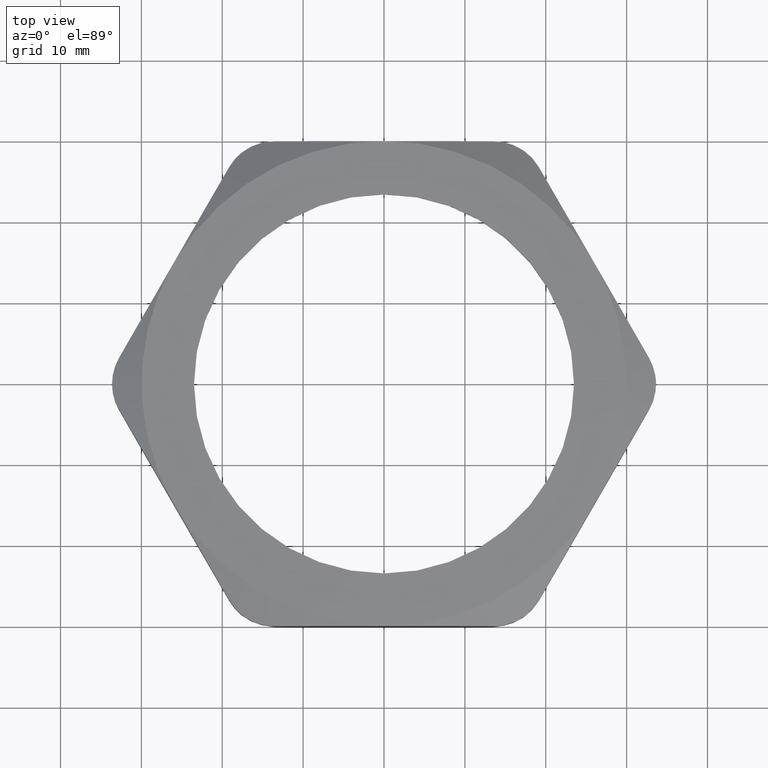
[diagram: clean part render]
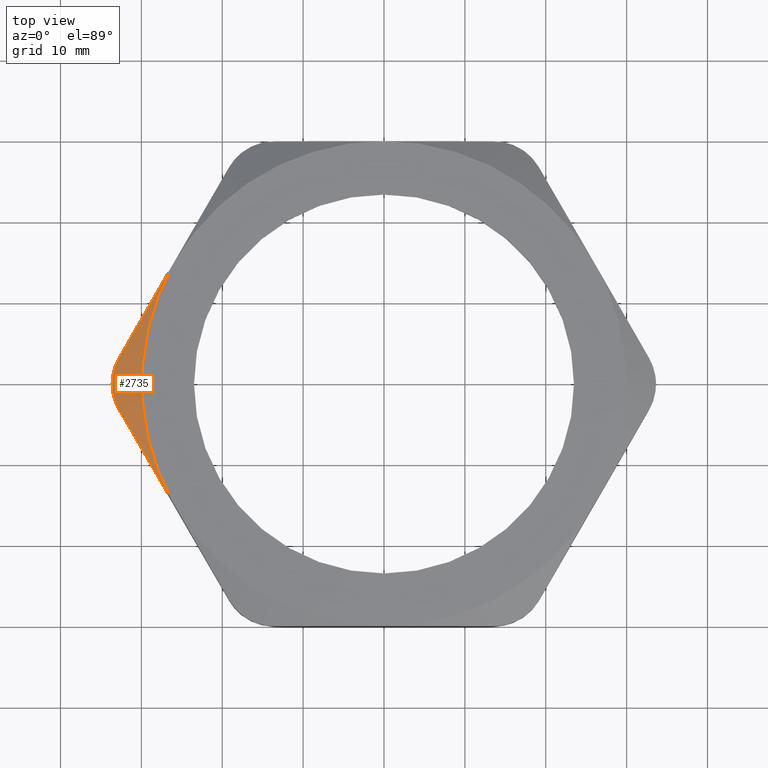
[diagram: same view with one face highlighted and labeled with its STEP entity id]
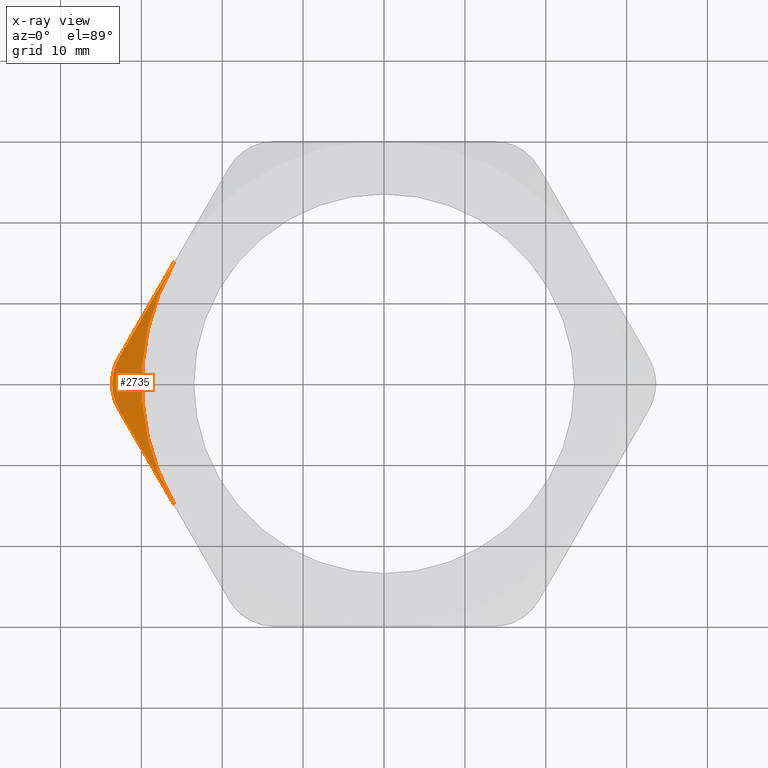
[diagram: x-ray of the same camera — body ghosted, the highlighted face saturated]
A machine part, top view. The second image highlights one B-rep face of the part: STEP entity #2735.
The next image is the same camera in x-ray: the body ghosted, the highlighted face saturated — about 0% of this face is hidden behind the body in this view.
In plain terms, the highlighted conical surface has half-angle 60 deg.
Its self-contained STEP definition (entity closure, byte-faithful):
#359 = CARTESIAN_POINT ( 'NONE',  ( -1.290377851638813400, -0.1249999999999998100, 0.2427859541343051200 ) ) ;
#360 = CARTESIAN_POINT ( 'NONE',  ( -1.301163024300265200, -0.1063195329819641400, 0.2376280449449064100 ) ) ;
#361 = CARTESIAN_POINT ( 'NONE',  ( -1.309608273902644700, -0.08602256121026791200, 0.2336403273867146400 ) ) ;
#362 = CARTESIAN_POINT ( 'NONE',  ( -1.318085377249127700, -0.05456655859989911800, 0.2296491859462564100 ) ) ;
#363 = CARTESIAN_POINT ( 'NONE',  ( -1.320238384401353900, -0.04387041525387930900, 0.2286388179600908100 ) ) ;
#364 = CARTESIAN_POINT ( 'NONE',  ( -1.323141469423208600, -0.02203945126250673700, 0.2272774143254683900 ) ) ;
#365 = CARTESIAN_POINT ( 'NONE',  ( -1.323871500692704400, -0.01095095147729014000, 0.2269357503463527200 ) ) ;
#366 = CARTESIAN_POINT ( 'NONE',  ( -1.323871500692703500, 2.219626507176767900E-016, 0.2269357503463527200 ) ) ;
#368 = CARTESIAN_POINT ( 'NONE',  ( -1.323871500692703500, 2.219626507176767900E-016, 0.2269357503463527200 ) ) ;
#369 = B_SPLINE_CURVE_WITH_KNOTS ( 'NONE', 3,
 ( #366, #365, #364, #363, #362, #361, #360, #359 ),
 .UNSPECIFIED., .F., .F.,
 ( 4, 2, 2, 4 ),
 ( 0.003343581398575306000, 0.004176957635011810700, 0.005010333871448315000, 0.006677086344321322800 ),
 .UNSPECIFIED. ) ;
#370 = CARTESIAN_POINT ( 'NONE',  ( -1.290377851638813400, -0.1249999999999998100, 0.2427859541343051200 ) ) ;
#488 = EDGE_CURVE ( 'NONE', #489, #490, #369, .T. ) ;
#489 = VERTEX_POINT ( 'NONE', #368 ) ;
#490 = VERTEX_POINT ( 'NONE', #370 ) ;
#1241 = CARTESIAN_POINT ( 'NONE',  ( -1.021909976465637900, -0.5899999999999995200, 0.3100000000000000000 ) ) ;
#1242 = CARTESIAN_POINT ( 'NONE',  ( -1.067459181867329400, -0.5111064619998793000, 0.3100000000000001600 ) ) ;
#1243 = CARTESIAN_POINT ( 'NONE',  ( -1.112566298939979400, -0.4329786434470909700, 0.3038445522537130400 ) ) ;
#1244 = CARTESIAN_POINT ( 'NONE',  ( -1.202005897894103500, -0.2780647138499641700, 0.2807479695387031200 ) ) ;
#1245 = CARTESIAN_POINT ( 'NONE',  ( -1.246341198180636300, -0.2012737211848654200, 0.2638460768298029300 ) ) ;
#1246 = CARTESIAN_POINT ( 'NONE',  ( -1.290377851638813400, -0.1249999999999998100, 0.2427859541343051200 ) ) ;
#1247 = B_SPLINE_CURVE_WITH_KNOTS ( 'NONE', 3,
 ( #1246, #1245, #1244, #1243, #1242, #1241 ),
 .UNSPECIFIED., .F., .F.,
 ( 4, 2, 4 ),
 ( 0.003767047510153079000, 0.01063822244227694500, 0.01750939737440081200 ),
 .UNSPECIFIED. ) ;
#1268 = CARTESIAN_POINT ( 'NONE',  ( -1.021909976465637900, -0.5899999999999995200, 0.3100000000000000000 ) ) ;
#1783 = CARTESIAN_POINT ( 'NONE',  ( -1.290377851638813400, 0.1250000000000001100, 0.2427859541343051200 ) ) ;
#1784 = CARTESIAN_POINT ( 'NONE',  ( -1.246431231723729200, 0.2011177785138446300, 0.2638030191195701000 ) ) ;
#1785 = CARTESIAN_POINT ( 'NONE',  ( -1.202143552112761200, 0.2778262897493733500, 0.2807020580561908100 ) ) ;
#1786 = CARTESIAN_POINT ( 'NONE',  ( -1.135048905416903500, 0.3940376267424818300, 0.2980438790977825200 ) ) ;
#1787 = CARTESIAN_POINT ( 'NONE',  ( -1.112573565966476800, 0.4329660565879781000, 0.3024908025705315100 ) ) ;
#1788 = CARTESIAN_POINT ( 'NONE',  ( -1.067381612085252800, 0.5112408168035675900, 0.3084714449772222300 ) ) ;
#1789 = CARTESIAN_POINT ( 'NONE',  ( -1.044586880877922800, 0.5507224493995391800, 0.3100000000000003300 ) ) ;
#1790 = CARTESIAN_POINT ( 'NONE',  ( -1.021909976465637400, 0.5899999999999999700, 0.3100000000000000000 ) ) ;
#1791 = CARTESIAN_POINT ( 'NONE',  ( -1.021909976465637400, 0.5899999999999999700, 0.3100000000000000000 ) ) ;
#1792 = B_SPLINE_CURVE_WITH_KNOTS ( 'NONE', 3,
 ( #1790, #1789, #1788, #1787, #1786, #1785, #1784, #1783 ),
 .UNSPECIFIED., .F., .F.,
 ( 4, 2, 2, 4 ),
 ( 0.01750939737440082600, 0.02093024688783882300, 0.02435109640127682000, 0.03119279542815280700 ),
 .UNSPECIFIED. ) ;
#1793 = CARTESIAN_POINT ( 'NONE',  ( -1.290377851638813400, 0.1250000000000001100, 0.2427859541343051200 ) ) ;
#1890 = CONICAL_SURFACE ( 'NONE', #1892, 1.180000000000000200, 1.047197551196600100 ) ;
#1892 = AXIS2_PLACEMENT_3D ( 'NONE', #1953, #1952, #1951 ) ;
#1910 = FACE_OUTER_BOUND ( 'NONE', #2744, .T. ) ;
#1922 = CIRCLE ( 'NONE', #1988, 1.180000000000000200 ) ;
#1951 = DIRECTION ( 'NONE',  ( 1.000000000000000000, 0.0000000000000000000, 0.0000000000000000000 ) ) ;
#1952 = DIRECTION ( 'NONE',  ( 0.0000000000000000000, 0.0000000000000000000, -1.000000000000000000 ) ) ;
#1953 = CARTESIAN_POINT ( 'NONE',  ( 0.0000000000000000000, 0.0000000000000000000, 0.3100000000000000000 ) ) ;
#1985 = DIRECTION ( 'NONE',  ( 1.000000000000000000, 0.0000000000000000000, 0.0000000000000000000 ) ) ;
#1986 = DIRECTION ( 'NONE',  ( 0.0000000000000000000, 0.0000000000000000000, 1.000000000000000000 ) ) ;
#1987 = CARTESIAN_POINT ( 'NONE',  ( 0.0000000000000000000, 0.0000000000000000000, 0.3100000000000000000 ) ) ;
#1988 = AXIS2_PLACEMENT_3D ( 'NONE', #1987, #1986, #1985 ) ;
#2146 = CARTESIAN_POINT ( 'NONE',  ( -1.323871500692703500, 2.219626507176767900E-016, 0.2269357503463527200 ) ) ;
#2147 = CARTESIAN_POINT ( 'NONE',  ( -1.323871500692704200, 0.01098405379685897700, 0.2269357503463526300 ) ) ;
#2148 = CARTESIAN_POINT ( 'NONE',  ( -1.323150731314133100, 0.02191688359895201500, 0.2272730796241371800 ) ) ;
#2149 = CARTESIAN_POINT ( 'NONE',  ( -1.320270611761771500, 0.04368023203091943300, 0.2286236963736375800 ) ) ;
#2150 = CARTESIAN_POINT ( 'NONE',  ( -1.318082992759608300, 0.05459731993352176500, 0.2296502803749609400 ) ) ;
#2151 = CARTESIAN_POINT ( 'NONE',  ( -1.309510802919500600, 0.08634002578141528100, 0.2336862750730252000 ) ) ;
#2152 = CARTESIAN_POINT ( 'NONE',  ( -1.301193061145003100, 0.1062675076407769300, 0.2376136801013974100 ) ) ;
#2153 = CARTESIAN_POINT ( 'NONE',  ( -1.290377851638813400, 0.1250000000000001100, 0.2427859541343051200 ) ) ;
#2170 = B_SPLINE_CURVE_WITH_KNOTS ( 'NONE', 3,
 ( #2153, #2152, #2151, #2150, #2149, #2148, #2147, #2146 ),
 .UNSPECIFIED., .F., .F.,
 ( 4, 2, 2, 4 ),
 ( 2.742838647325547800E-018, 0.001671790699287654500, 0.002507686048931480300, 0.003343581398575306000 ),
 .UNSPECIFIED. ) ;
#2424 = EDGE_CURVE ( 'NONE', #490, #2442, #1247, .T. ) ;
#2442 = VERTEX_POINT ( 'NONE', #1268 ) ;
#2664 = VERTEX_POINT ( 'NONE', #1793 ) ;
#2666 = EDGE_CURVE ( 'NONE', #2667, #2664, #1792, .T. ) ;
#2667 = VERTEX_POINT ( 'NONE', #1791 ) ;
#2717 = ORIENTED_EDGE ( 'NONE', *, *, #2750, .F. ) ;
#2735 = ADVANCED_FACE ( 'NONE', ( #1910 ), #1890, .T. ) ;
#2744 = EDGE_LOOP ( 'NONE', ( #2745, #2746, #2835, #2836, #2717 ) ) ;
#2745 = ORIENTED_EDGE ( 'NONE', *, *, #2666, .T. ) ;
#2746 = ORIENTED_EDGE ( 'NONE', *, *, #2834, .T. ) ;
#2750 = EDGE_CURVE ( 'NONE', #2667, #2442, #1922, .T. ) ;
#2834 = EDGE_CURVE ( 'NONE', #2664, #489, #2170, .T. ) ;
#2835 = ORIENTED_EDGE ( 'NONE', *, *, #488, .T. ) ;
#2836 = ORIENTED_EDGE ( 'NONE', *, *, #2424, .T. ) ;